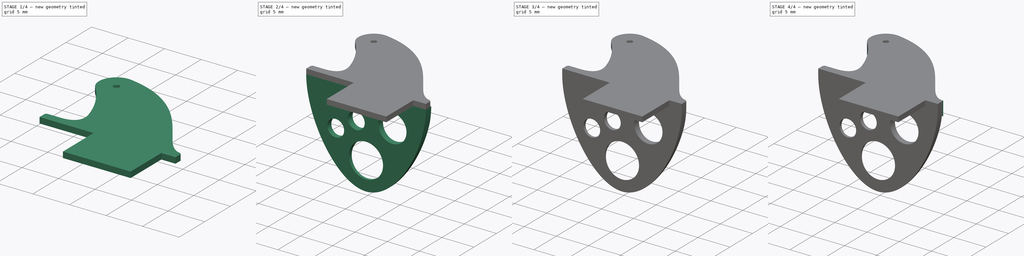
[diagram: build sequence overview — one tinted view per stage of 4, left to right]
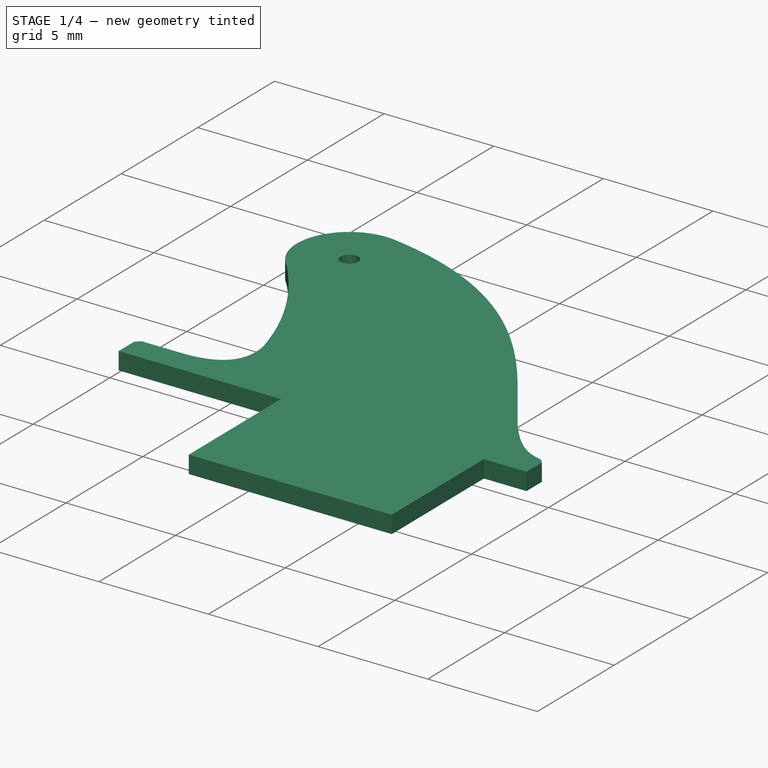
[diagram: stage 1 of 4 — iso view after this stage's code; geometry added in this stage tinted green]
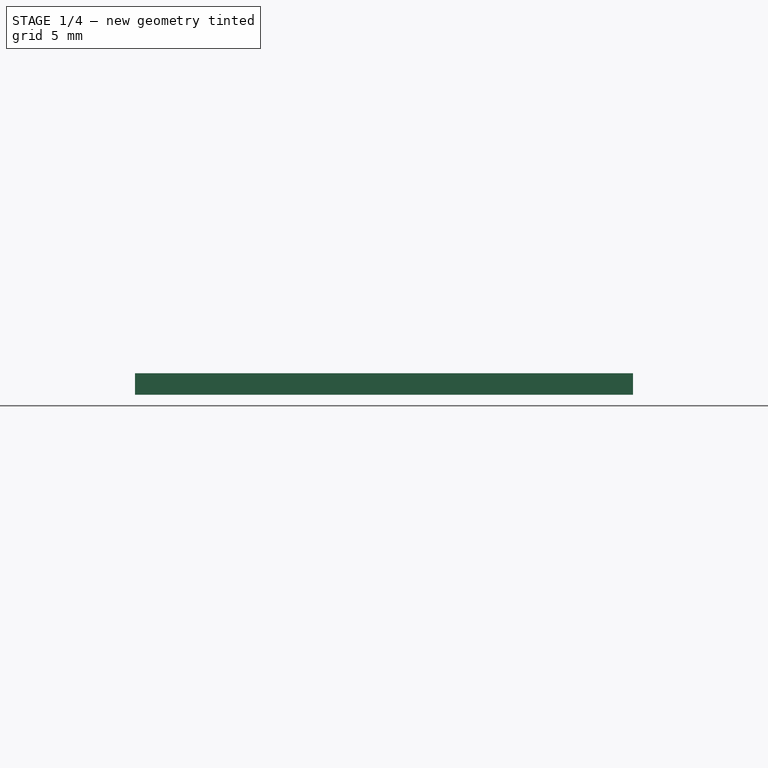
[diagram: stage 1 of 4 — front view after this stage's code; geometry added in this stage tinted green]
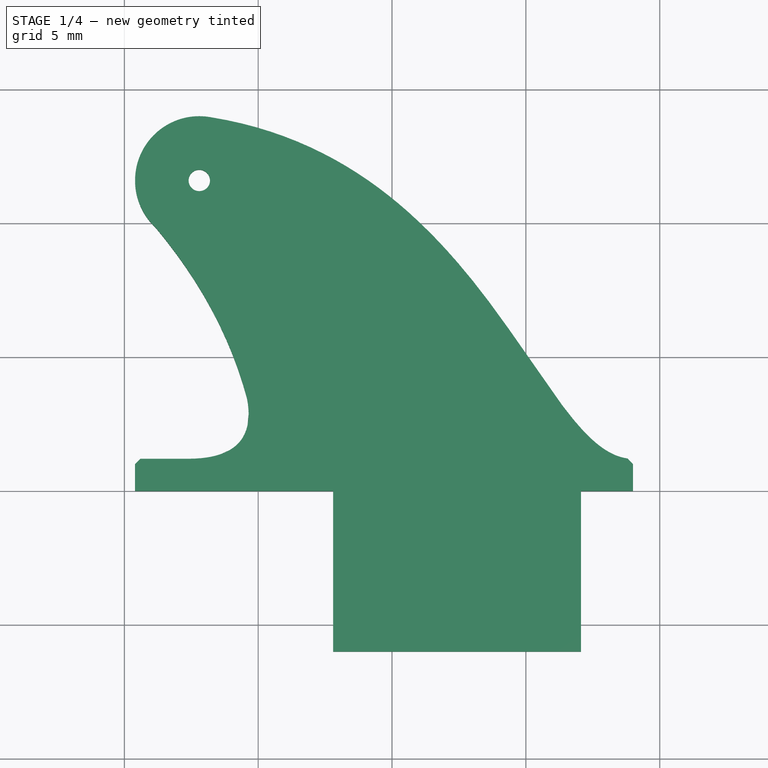
[diagram: stage 1 of 4 — top view after this stage's code; geometry added in this stage tinted green]
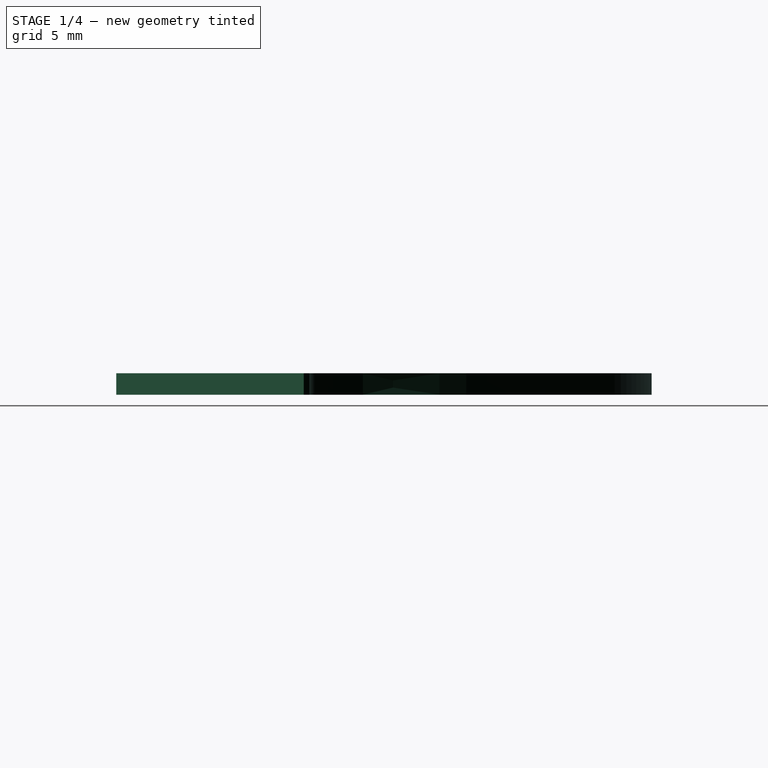
[diagram: stage 1 of 4 — right view after this stage's code; geometry added in this stage tinted green]
FCSTD DOCUMENT  (FreeCAD 0.20R0.20.2)
Label: 014
License: All rights reserved
LicenseURL: http://en.wikipedia.org/wiki/All_rights_reserved
objects: Sketcher::SketchObject×7, Part::Extrusion×5, Part::Chamfer×5, Part::Cut×2
note: 19 computed .brp shape members not serialized (recipe doc carries the construction recipe); baked Part::Feature solids carry a one-line shape summary decoded from their .brp

FEATURE [Sketcher::SketchObject] Sketch  label="main"
  FullyConstrained = true
  sketch-geometry (25):
    g0: LineSegment StartX=12.0586 StartY=-6 StartZ=0 EndX=12.0586 EndY=0 EndZ=0
    g1: LineSegment StartX=2.8 StartY=-6 StartZ=0 EndX=2.8 EndY=0 EndZ=0
    g2: LineSegment StartX=2.8 StartY=-6 StartZ=0 EndX=12.0586 EndY=-6 EndZ=0
    g3: LineSegment StartX=12.0586 StartY=0 StartZ=0 EndX=14 EndY=0 EndZ=0
    g4: LineSegment StartX=2.8 StartY=0 StartZ=0 EndX=0 EndY=0 EndZ=0
    g5: LineSegment StartX=14 StartY=0 StartZ=0 EndX=14 EndY=1.2 EndZ=0
    g6: LineSegment StartX=0 StartY=0 StartZ=0 EndX=-4.6 EndY=0 EndZ=0
    g7: Circle CenterX=-2.2 CenterY=11.6 CenterZ=0 NormalX=0 NormalY=0 NormalZ=1 AngleXU=0 Radius=0.4
    g8-g11: Circle x4 (B-spline internal-alignment scaffolding for g12; pole/knot coordinates omitted)
    g12: BSplineCurve PolesCount=4 KnotsCount=2 Degree=3 IsPeriodic=0
    g13: GeomPoint X=-1.74436 Y=13.9564 Z=0
    g14: GeomPoint X=14 Y=1.2 Z=0
    g15: ArcOfCircle CenterX=-2.2 CenterY=11.6 CenterZ=0 NormalX=0 NormalY=0 NormalZ=1 AngleXU=0 Radius=2.4 StartAngle=1.37979 EndAngle=3.95565
    g16: LineSegment StartX=-2.62672 StartY=1.2 StartZ=0 EndX=-4.6 EndY=1.2 EndZ=0
    g17: LineSegment StartX=-4.6 StartY=0 StartZ=0 EndX=-4.6 EndY=1.2 EndZ=0
    g18: Circle CenterX=-2.62672 CenterY=1.2 CenterZ=0 NormalX=0 NormalY=0 NormalZ=1 AngleXU=0 Radius=1
    g19: Circle CenterX=0 CenterY=1.2 CenterZ=0 NormalX=0 NormalY=0 NormalZ=1 AngleXU=0 Radius=1
    g20: Circle CenterX=-0.413885 CenterY=3.44541 CenterZ=0 NormalX=0 NormalY=0 NormalZ=1 AngleXU=0 Radius=1
    g21: BSplineCurve PolesCount=3 KnotsCount=2 Degree=2 IsPeriodic=0
    g22: GeomPoint X=-2.62672 Y=1.2 Z=0
    g23: GeomPoint X=-0.413885 Y=3.44541 Z=0
    g24: BSplineCurve PolesCount=3 KnotsCount=2 Degree=2 IsPeriodic=0
  constraints (52):
    c: Vertical(g0)
    c: Vertical(g1)
    c: Block(g1)
    c: Block(g0)
    c: Distance(g1) = 6
    c: Coincident(g2,g1)
    c: Horizontal(g2)
    c: Coincident(g0,g2)
    c: Block(g2)
    c: Coincident(g3,g0)
    c: Horizontal(g3)
    c: Coincident(g4,g1)
    c: Horizontal(g4)
    c: Block(g3)
    c: Block(g4)
    c: Coincident(g5,g3)
    c: Vertical(g5)
    c: Distance(g5) = 1.2
    c: Coincident(g6,g4)
    c: Horizontal(g6)
    c: Distance(g6) = 4.6
    c: Block(g7)
    c: Weight(g8) = 1
    c: Equal(g8,g9)
    c: Equal(g8,g10)
    c: Equal(g8,g11)
    c: Coincident(g12,g5)
    c: InternalAlignment(g8-g11 -> g12) x4
    c: InternalAlignment(g13,g12)
    c: InternalAlignment(g14,g12)
    c: Block(g12)
    c: Coincident(g15,g7)
    c: Coincident(g15,g12)
    c: Coincident(g15,g24)
    c: Block(g15)
    c: Horizontal(g16)
    c: Coincident(g17,g6)
    c: Vertical(g17)
    c: Coincident(g17,g16)
    c: Weight(g18) = 1
    c: Equal(g18,g19)
    c: Equal(g18,g20)
    c: InternalAlignment(g18,g21)
    c: InternalAlignment(g19,g21)
    c: InternalAlignment(g20,g21)
    c: InternalAlignment(g22,g21)
    c: InternalAlignment(g23,g21)
    c: Block(g16)
    c: Coincident(g16,g21)
    c: Coincident(g21,g24)
    c: Block(g24)
    c: Block(g21)
FEATURE [Part::Extrusion] Extrude  label="horn001"
  Base = -> Sketch
  Dir = (0,0,1)
  DirMode = 2
  FaceMakerClass = Part::FaceMakerBullseye
  LengthFwd = 0.8
  LengthRev = 0
  Solid = true
  Symmetric = false
FEATURE [Part::Chamfer] Chamfer003
  Base = -> Extrude
  Edges = 1 edges r=0.2: [Edge11]
FEATURE [Part::Chamfer] Chamfer004
  Base = -> Chamfer003
  Edges = 1 edges r=0.2: [Edge43]
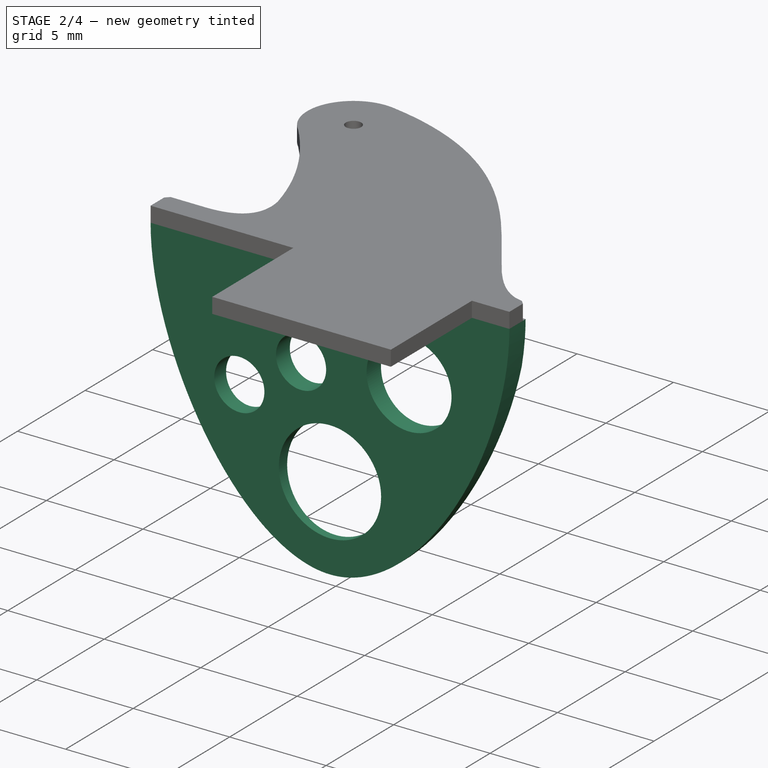
[diagram: stage 2 of 4 — iso view after this stage's code; geometry added in this stage tinted green]
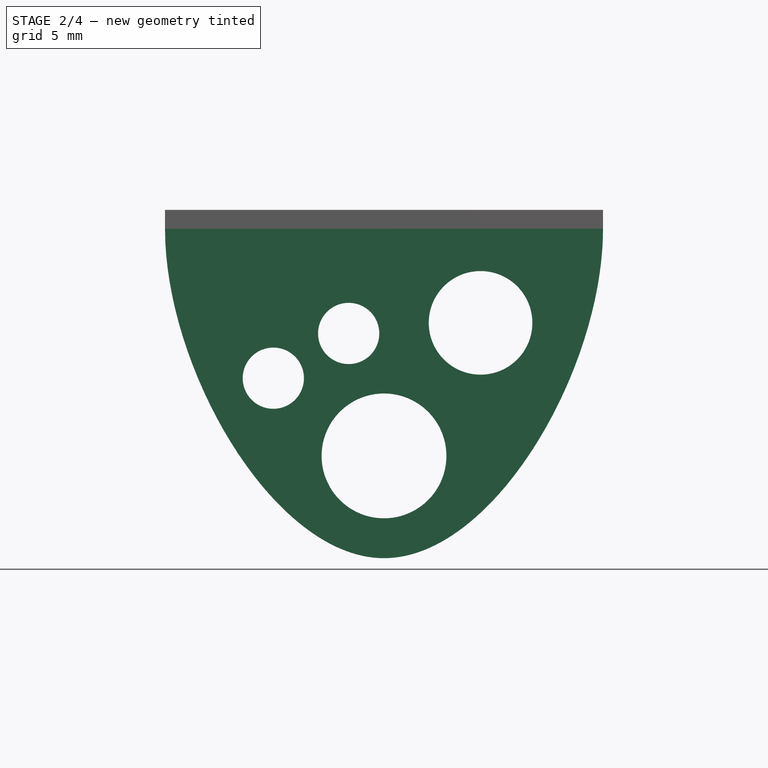
[diagram: stage 2 of 4 — front view after this stage's code; geometry added in this stage tinted green]
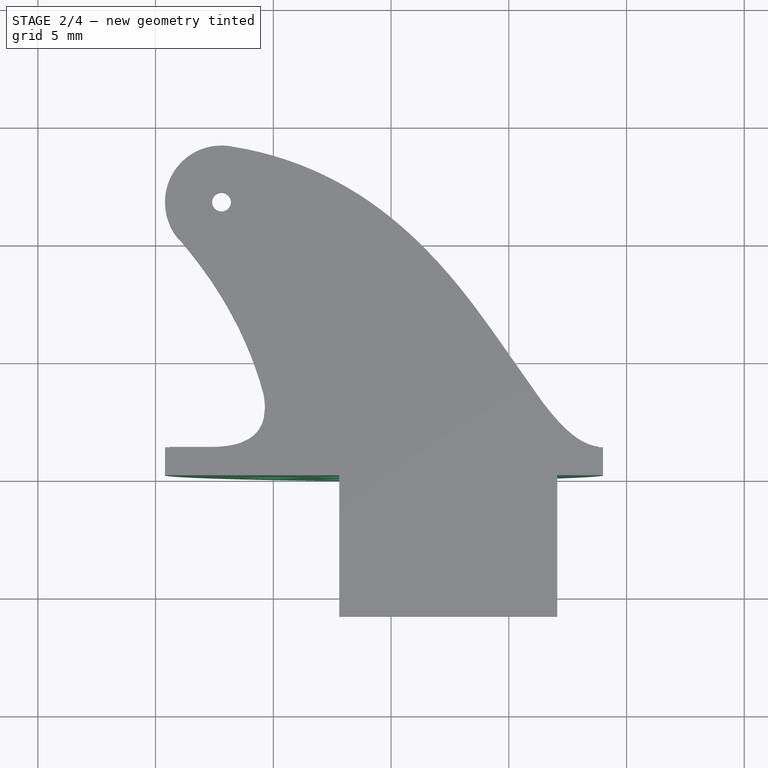
[diagram: stage 2 of 4 — top view after this stage's code; geometry added in this stage tinted green]
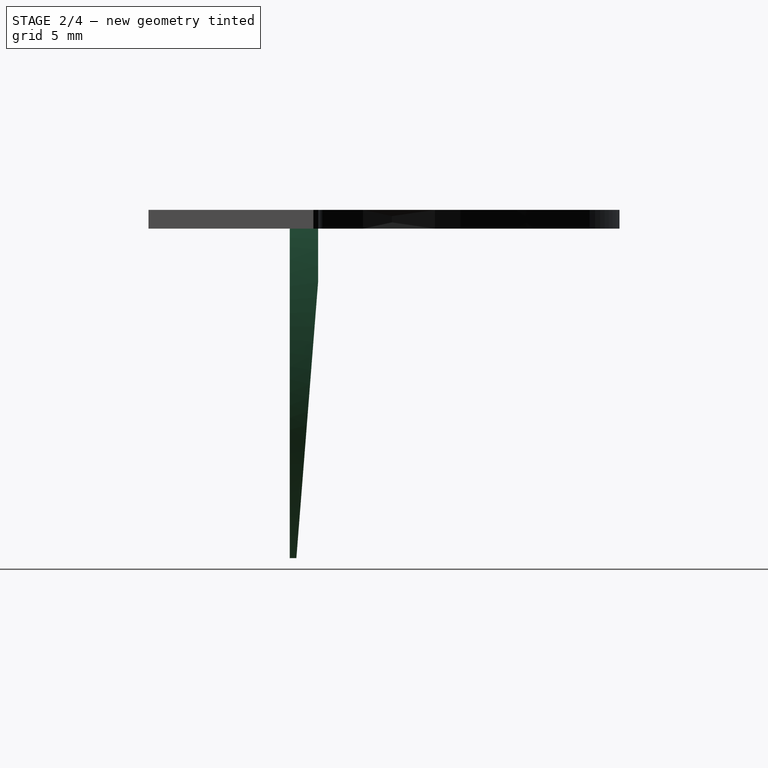
[diagram: stage 2 of 4 — right view after this stage's code; geometry added in this stage tinted green]
FEATURE [Sketcher::SketchObject] Sketch002
  FullyConstrained = true
  Placement = pos=(-4.6,0,0) rot=(1,0,0;1.5708rad)
  sketch-geometry (14):
    g0-g4: Circle x5 (B-spline internal-alignment scaffolding for g5; pole/knot coordinates omitted)
    g5: BSplineCurve PolesCount=5 KnotsCount=3 Degree=3 IsPeriodic=0
    g6: GeomPoint X=0 Y=0 Z=0
    g7: GeomPoint X=9.3 Y=-13.9926 Z=0
    g8: GeomPoint X=18.6 Y=0 Z=0
    g9: Circle CenterX=13.4 CenterY=-4 CenterZ=0 NormalX=0 NormalY=0 NormalZ=1 AngleXU=0 Radius=2.2
    g10: Circle CenterX=9.3 CenterY=-9.65 CenterZ=0 NormalX=0 NormalY=0 NormalZ=1 AngleXU=0 Radius=2.65
    g11: LineSegment StartX=0 StartY=0 StartZ=0 EndX=18.6 EndY=0 EndZ=0
    g12: Circle CenterX=4.6 CenterY=-6.35 CenterZ=0 NormalX=0 NormalY=0 NormalZ=1 AngleXU=0 Radius=1.3
    g13: Circle CenterX=7.8 CenterY=-4.45 CenterZ=0 NormalX=0 NormalY=0 NormalZ=1 AngleXU=0 Radius=1.3
  constraints (14):
    c: Weight(g0) = 1
    c: Equal(g0, g1-g4) x4
    c: InternalAlignment(g0-g4 -> g5) x5
    c: InternalAlignment(g6,g5)
    c: InternalAlignment(g7,g5)
    c: InternalAlignment(g8,g5)
    c: Block(g5)
    c: Block(g10)
    c: Coincident(g11,g5)
    c: Coincident(g11,g5)
    c: Horizontal(g11)
    c: Block(g9)
    c: Block(g13)
    c: Block(g12)
FEATURE [Sketcher::SketchObject] Sketch003
  FullyConstrained = false
  Placement = pos=(-4.6,0,0) rot=(1,0,0;1.5708rad)
  sketch-geometry (20):
    g0-g4: Circle x5 (B-spline internal-alignment scaffolding for g5; pole/knot coordinates omitted)
    g5: BSplineCurve PolesCount=5 KnotsCount=3 Degree=3 IsPeriodic=0
    g6: GeomPoint X=0 Y=0 Z=0
    g7: GeomPoint X=9.3 Y=-13.9926 Z=0
    g8: GeomPoint X=18.6 Y=0 Z=0
    g9: Circle CenterX=5.2 CenterY=-4 CenterZ=0 NormalX=0 NormalY=0 NormalZ=1 AngleXU=0 Radius=2.2
    g10: Circle CenterX=13.4 CenterY=-4 CenterZ=0 NormalX=0 NormalY=0 NormalZ=1 AngleXU=0 Radius=2.2
    g11: Circle CenterX=9.3 CenterY=-9.65 CenterZ=0 NormalX=0 NormalY=0 NormalZ=1 AngleXU=0 Radius=2.65
    g12: LineSegment StartX=0 StartY=0 StartZ=0 EndX=18.6 EndY=0 EndZ=0
    g13: Circle CenterX=4.6 CenterY=-6.35 CenterZ=0 NormalX=0 NormalY=0 NormalZ=1 AngleXU=0 Radius=1.3
    g14: Circle CenterX=7.8 CenterY=-4.45 CenterZ=0 NormalX=0 NormalY=0 NormalZ=1 AngleXU=0 Radius=1.3
    g15: LineSegment StartX=4.6 StartY=-6.35 StartZ=0 EndX=4.6 EndY=0 EndZ=0
    g16: LineSegment StartX=0 StartY=0 StartZ=0 EndX=0 EndY=-6.35 EndZ=0
    g17: LineSegment StartX=4.6 StartY=-6.35 StartZ=0 EndX=0 EndY=-6.35 EndZ=0
    g18: LineSegment StartX=4.6 StartY=-6.35 StartZ=0 EndX=7.8 EndY=-6.35 EndZ=0
    g19: LineSegment StartX=7.8 StartY=-4.45 StartZ=0 EndX=7.8 EndY=-6.35 EndZ=0
  constraints (30):
    c: Weight(g0) = 1
    c: Equal(g0, g1-g4) x4
    c: InternalAlignment(g0-g4 -> g5) x5
    c: InternalAlignment(g6,g5)
    c: InternalAlignment(g7,g5)
    c: InternalAlignment(g8,g5)
    c: Block(g5)
    c: Block(g9)
    c: Block(g11)
    c: Coincident(g12,g5)
    c: Coincident(g12,g5)
    c: Horizontal(g12)
    c: Block(g10)
    c: Coincident(g15,g13)
    c: PointOnObject(g15,g12)
    c: Vertical(g15)
    c: Distance(g15) = 6.35
    c: Coincident(g16,g5)
    c: Vertical(g16)
    c: Coincident(g17,g13)
    c: Horizontal(g17)
    c: Coincident(g17,g16)
    c: Distance(g17) = 4.6
    c: Coincident(g18,g13)
    c: Horizontal(g18)
    c: Coincident(g19,g14)
    c: Vertical(g19)
    c: Coincident(g18,g19)
    c: Distance(g18) = 3.2
    c: Distance(g19) = 1.9
FEATURE [Part::Extrusion] Extrude002  label="base"
  Base = -> Sketch002
  Dir = (0,-1,2e-16)
  DirMode = 2
  FaceMakerClass = Part::FaceMakerBullseye
  LengthFwd = 1.2
  LengthRev = 0
  Placement = pos=(0,1.2,0) rot=(0,0,1;0rad)
  Solid = true
  Symmetric = false
FEATURE [Sketcher::SketchObject] Sketch006  label="remove003"
  FullyConstrained = true
  Placement = pos=(0,0,0) rot=(0.57735,0.57735,0.57735;2.0944rad)
  sketch-geometry (3):
    g0: LineSegment StartX=1.2 StartY=1.519 StartZ=0 EndX=14.2 EndY=1.519 EndZ=0
    g1: LineSegment StartX=14.2 StartY=1.519 StartZ=0 EndX=14.2 EndY=2.519 EndZ=0
    g2: LineSegment StartX=14.2 StartY=2.519 StartZ=0 EndX=1.2 EndY=1.519 EndZ=0
  constraints (7):
    c: Horizontal(g0)
    c: Block(g0)
    c: Coincident(g1,g0)
    c: Vertical(g1)
    c: Distance(g1) = 1
    c: Coincident(g2,g1)
    c: Coincident(g2,g0)
FEATURE [Part::Extrusion] Extrude004  label="remove004"
  Base = -> Sketch006
  Dir = (1,0,0)
  DirMode = 2
  FaceMakerClass = Part::FaceMakerBullseye
  LengthFwd = 24
  LengthRev = 0
  Placement = pos=(-6,-0.16,-0.2) rot=(1,0,0;-1.64934rad)
  Solid = true
  Symmetric = false
FEATURE [Part::Cut] Cut001  label="base001"
  Base = -> Extrude002
  Tool = -> Extrude004
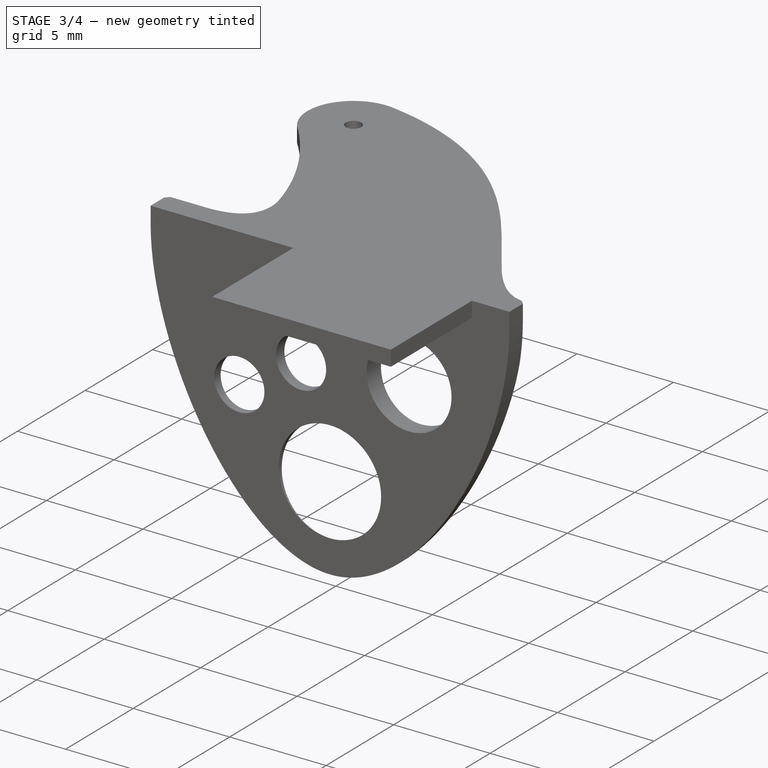
[diagram: stage 3 of 4 — iso view after this stage's code; geometry added in this stage tinted green]
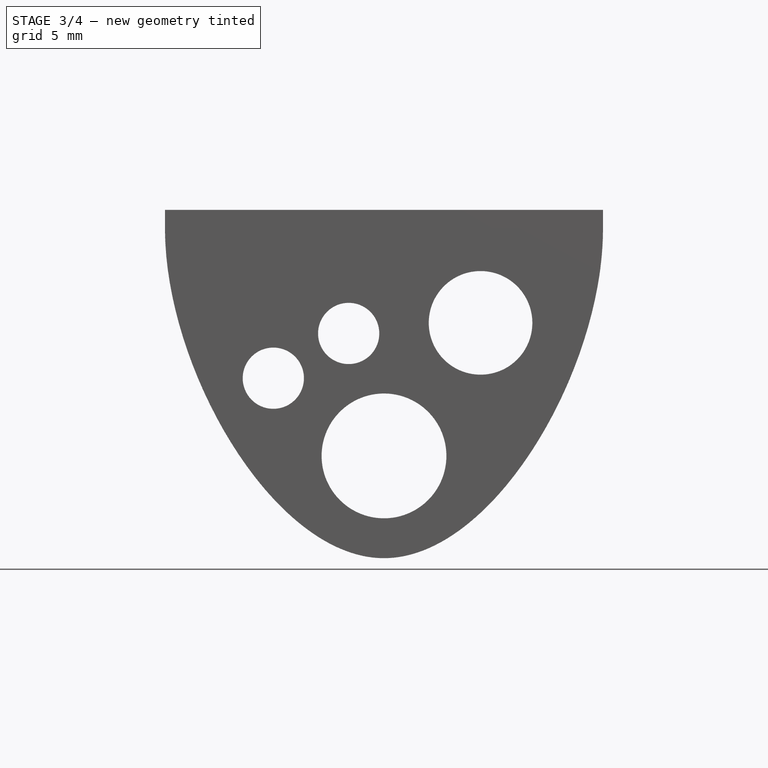
[diagram: stage 3 of 4 — front view after this stage's code; geometry added in this stage tinted green]
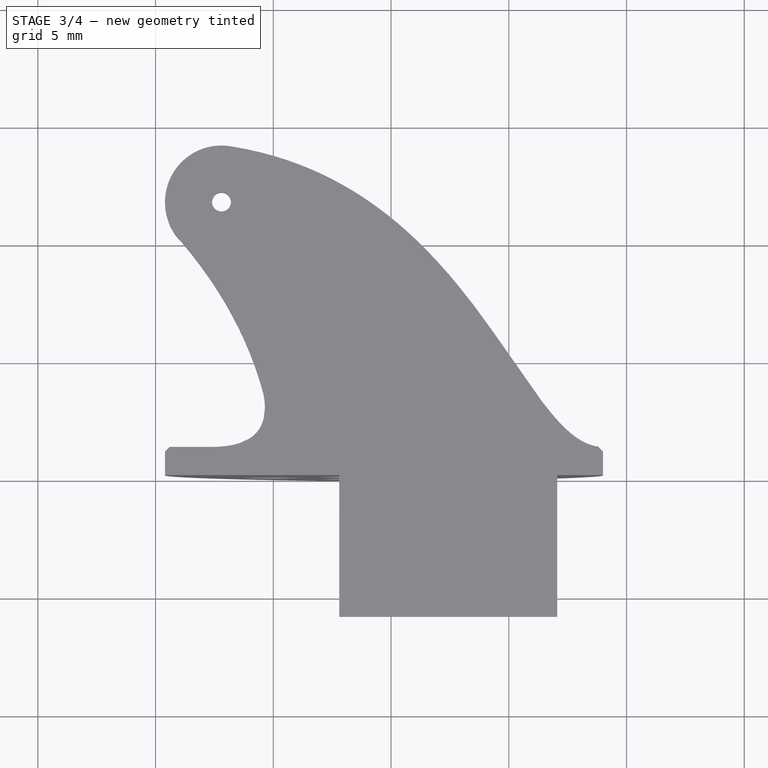
[diagram: stage 3 of 4 — top view after this stage's code; geometry added in this stage tinted green]
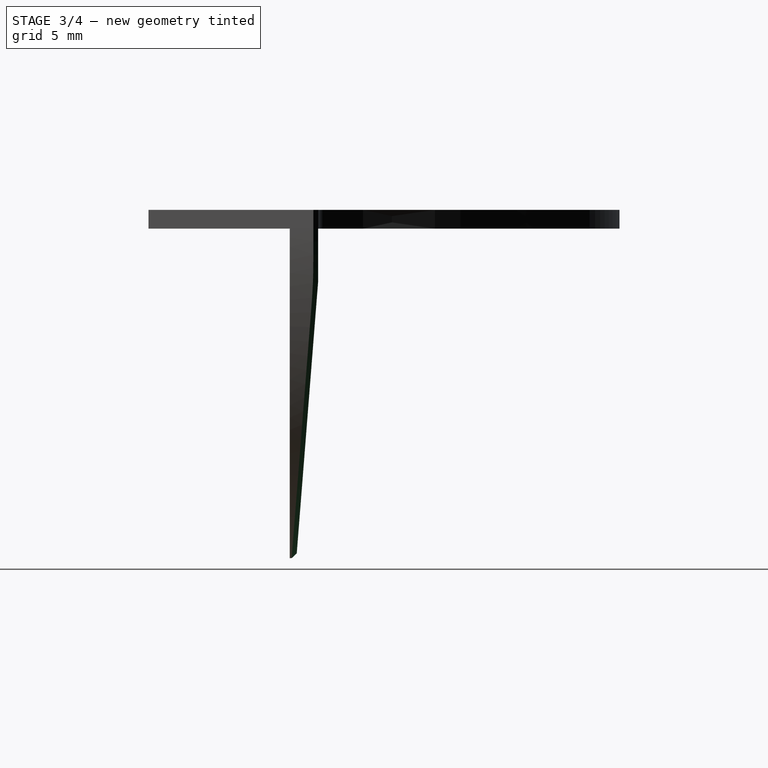
[diagram: stage 3 of 4 — right view after this stage's code; geometry added in this stage tinted green]
FEATURE [Part::Chamfer] Chamfer
  Base = -> Cut001
  Edges = 1 edges r=0.4: [Edge13]
FEATURE [Part::Chamfer] Chamfer001
  Base = -> Chamfer
  Edges = 2 edges r=0.4: [Edge7,Edge8]
FEATURE [Part::Chamfer] Chamfer002
  Base = -> Chamfer001
  Edges = 1 edges r=0.2: [Edge4]
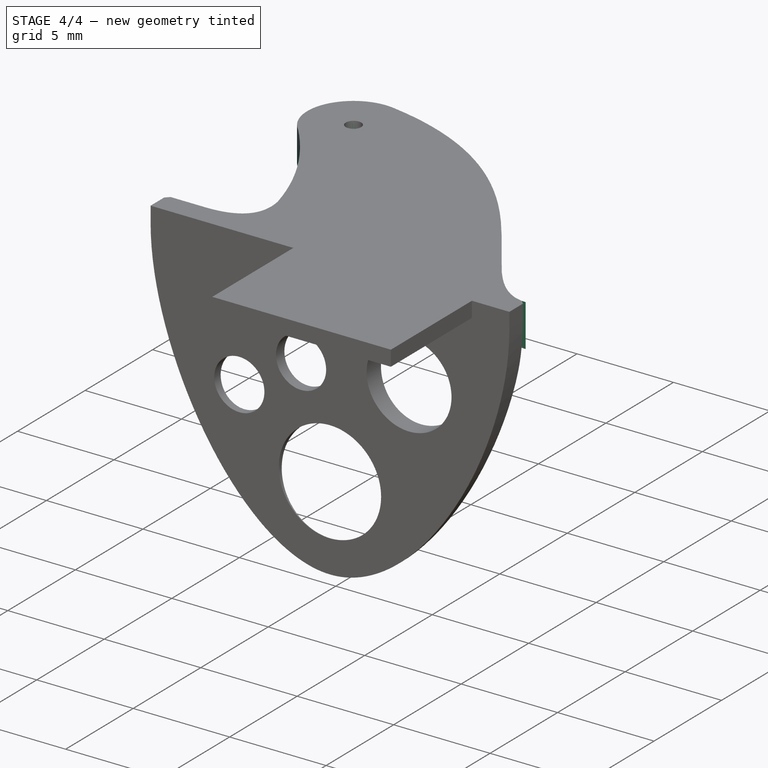
[diagram: stage 4 of 4 — iso view after this stage's code; geometry added in this stage tinted green]
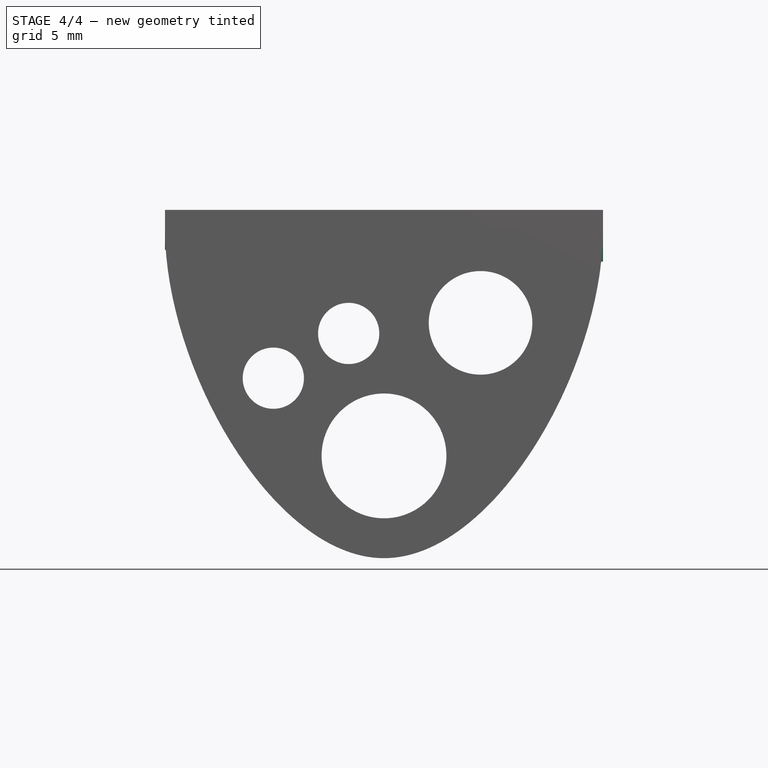
[diagram: stage 4 of 4 — front view after this stage's code; geometry added in this stage tinted green]
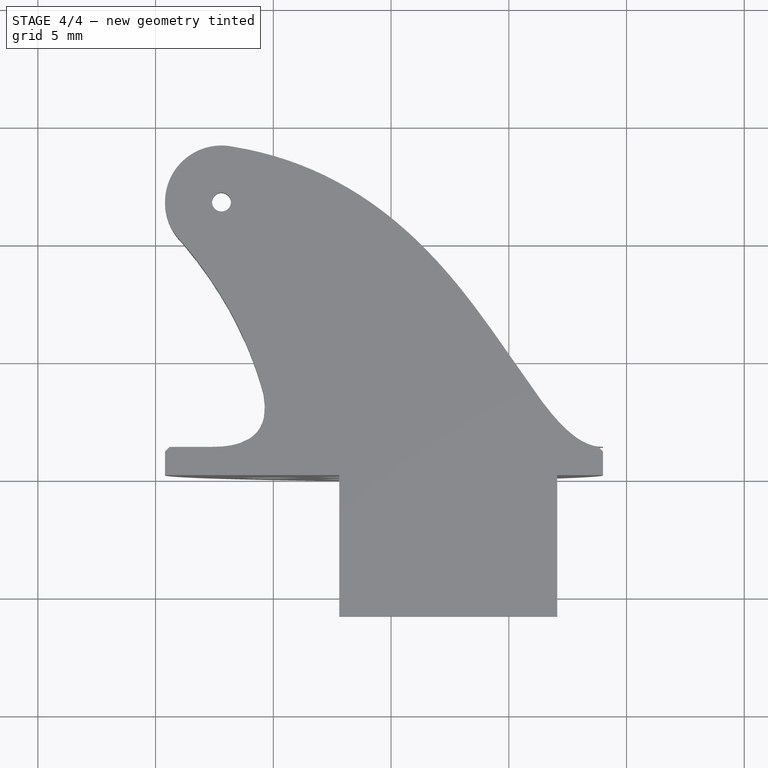
[diagram: stage 4 of 4 — top view after this stage's code; geometry added in this stage tinted green]
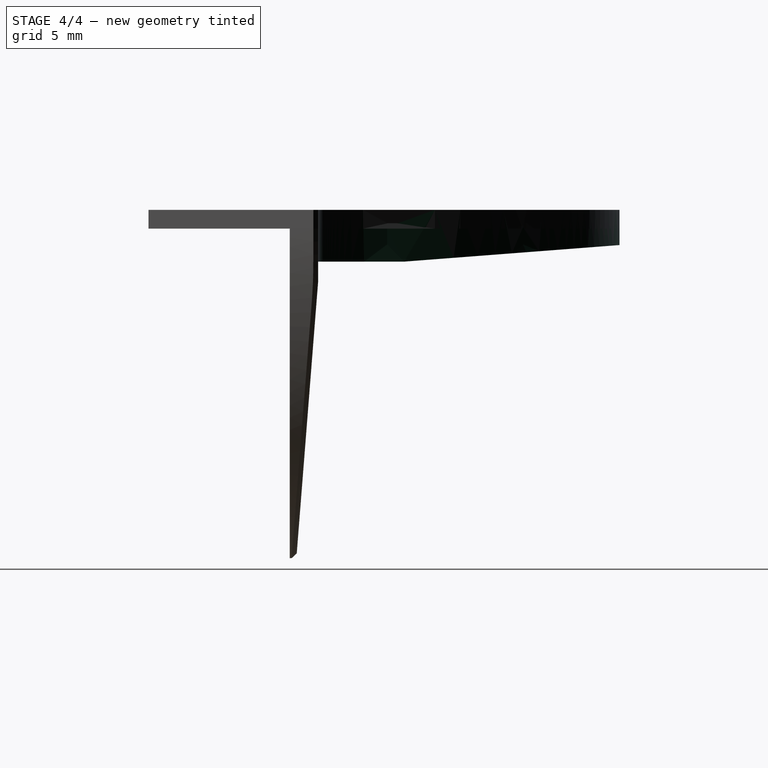
[diagram: stage 4 of 4 — right view after this stage's code; geometry added in this stage tinted green]
FEATURE [Sketcher::SketchObject] Sketch001  label="main001"
  FullyConstrained = false
  sketch-geometry (45):
    g0: Circle CenterX=-2.2 CenterY=11.6 CenterZ=0 NormalX=0 NormalY=0 NormalZ=1 AngleXU=0 Radius=0.4
    g1-g4: Circle x4 (B-spline internal-alignment scaffolding for g5; pole/knot coordinates omitted)
    g5: BSplineCurve PolesCount=4 KnotsCount=2 Degree=3 IsPeriodic=0
    g6: GeomPoint X=-1.74436 Y=13.9564 Z=0
    g7: GeomPoint X=14 Y=1.2 Z=0
    g8: ArcOfCircle CenterX=-2.2 CenterY=11.6 CenterZ=0 NormalX=0 NormalY=0 NormalZ=1 AngleXU=0 Radius=2.4 StartAngle=1.37979 EndAngle=3.95565
    g9: Circle CenterX=-2.62672 CenterY=1.2 CenterZ=0 NormalX=0 NormalY=0 NormalZ=1 AngleXU=0 Radius=1
    g10: Circle CenterX=0 CenterY=1.2 CenterZ=0 NormalX=0 NormalY=0 NormalZ=1 AngleXU=0 Radius=1
    g11: Circle CenterX=-0.413885 CenterY=3.44541 CenterZ=0 NormalX=0 NormalY=0 NormalZ=1 AngleXU=0 Radius=1
    g12: BSplineCurve PolesCount=3 KnotsCount=2 Degree=2 IsPeriodic=0
    g13: GeomPoint X=-2.62672 Y=1.2 Z=0
    g14: GeomPoint X=-0.413885 Y=3.44541 Z=0
    g15: BSplineCurve PolesCount=3 KnotsCount=2 Degree=2 IsPeriodic=0
    g16: Circle CenterX=1.34801 CenterY=2.51783 CenterZ=0 NormalX=0 NormalY=0 NormalZ=1 AngleXU=0 Radius=1
    g17: Circle CenterX=1.8831 CenterY=1.2 CenterZ=0 NormalX=0 NormalY=0 NormalZ=1 AngleXU=0 Radius=1
    g18: Circle CenterX=3.28198 CenterY=1.2 CenterZ=0 NormalX=0 NormalY=0 NormalZ=1 AngleXU=0 Radius=1
    g19: BSplineCurve PolesCount=3 KnotsCount=2 Degree=2 IsPeriodic=0
    g20: GeomPoint X=1.34801 Y=2.51783 Z=0
    g21: GeomPoint X=3.28198 Y=1.2 Z=0
    g22: Circle CenterX=9.22372 CenterY=2.86164 CenterZ=0 NormalX=0 NormalY=0 NormalZ=1 AngleXU=0 Radius=1
    g23: Circle CenterX=9.64409 CenterY=1.39848 CenterZ=0 NormalX=0 NormalY=0 NormalZ=1 AngleXU=0 Radius=1
    g24: Circle CenterX=7.76214 CenterY=1.2 CenterZ=0 NormalX=0 NormalY=0 NormalZ=1 AngleXU=0 Radius=1
    g25: BSplineCurve PolesCount=3 KnotsCount=2 Degree=2 IsPeriodic=0
    g26: GeomPoint X=9.22372 Y=2.86164 Z=0
    g27: GeomPoint X=7.76214 Y=1.2 Z=0
    g28: LineSegment StartX=-2.62672 StartY=1.2 StartZ=0 EndX=3.28198 EndY=1.2 EndZ=0
    g29: LineSegment StartX=7.76214 StartY=1.2 StartZ=0 EndX=14 EndY=1.2 EndZ=0
    g30: Circle CenterX=-0.671756 CenterY=12.1251 CenterZ=0 NormalX=0 NormalY=0 NormalZ=1 AngleXU=0 Radius=1
    g31: Circle CenterX=-0.754831 CenterY=12.699 CenterZ=0 NormalX=0 NormalY=0 NormalZ=1 AngleXU=0 Radius=1
    g32: Circle CenterX=0.224587 CenterY=12.4971 CenterZ=0 NormalX=0 NormalY=0 NormalZ=1 AngleXU=0 Radius=1
    g33: BSplineCurve PolesCount=3 KnotsCount=2 Degree=2 IsPeriodic=0
    g34: GeomPoint X=-0.671756 Y=12.1251 Z=0
    g35: GeomPoint X=0.224587 Y=12.4971 Z=0
    g36: Circle CenterX=-2.10085 CenterY=9.02995 CenterZ=0 NormalX=0 NormalY=0 NormalZ=1 AngleXU=0 Radius=1
    g37: Circle CenterX=-2.68572 CenterY=9.84108 CenterZ=0 NormalX=0 NormalY=0 NormalZ=1 AngleXU=0 Radius=1
    g38: Circle CenterX=-1.96262 CenterY=10.0016 CenterZ=0 NormalX=0 NormalY=0 NormalZ=1 AngleXU=0 Radius=1
    g39: BSplineCurve PolesCount=3 KnotsCount=2 Degree=2 IsPeriodic=0
    g40: GeomPoint X=-2.10085 Y=9.02995 Z=0
    g41: GeomPoint X=-1.96262 Y=10.0016 Z=0
    g42: ArcOfCircle CenterX=-2.2 CenterY=11.6 CenterZ=0 NormalX=0 NormalY=0 NormalZ=1 AngleXU=0 Radius=1.61593 StartAngle=4.85982 EndAngle=6.61413
    g43: BSplineCurve PolesCount=3 KnotsCount=2 Degree=2 IsPeriodic=0
    g44: BSplineCurve PolesCount=3 KnotsCount=2 Degree=2 IsPeriodic=0
  constraints (76):
    c: Block(g0)
    c: Weight(g1) = 1
    c: Equal(g1,g2)
    c: Equal(g1,g3)
    c: Equal(g1,g4)
    c: InternalAlignment(g1-g4 -> g5) x4
    c: InternalAlignment(g6,g5)
    c: InternalAlignment(g7,g5)
    c: Block(g5)
    c: Coincident(g8,g0)
    c: Coincident(g8,g5)
    c: Coincident(g8,g15)
    c: Block(g8)
    c: Weight(g9) = 1
    c: Equal(g9,g11)
    c: InternalAlignment(g9,g12)
    c: InternalAlignment(g10,g12)
    c: InternalAlignment(g11,g12)
    c: InternalAlignment(g13,g12)
    c: InternalAlignment(g14,g12)
    c: Coincident(g12,g15)
    c: Block(g15)
    c: Block(g12)
    c: Weight(g16) = 1
    c: Equal(g16,g17)
    c: Equal(g16,g18)
    c: InternalAlignment(g16,g19)
    c: InternalAlignment(g17,g19)
    c: InternalAlignment(g18,g19)
    c: InternalAlignment(g20,g19)
    c: InternalAlignment(g21,g19)
    c: Block(g19)
    c: Weight(g22) = 1
    c: Coincident(g25,g43)
    c: Equal(g22,g23)
    c: Equal(g22,g24)
    c: InternalAlignment(g22,g25)
    c: InternalAlignment(g23,g25)
    c: InternalAlignment(g24,g25)
    c: InternalAlignment(g26,g25)
    c: InternalAlignment(g27,g25)
    c: Block(g25)
    c: Coincident(g28,g19)
    c: Horizontal(g28)
    c: Coincident(g29,g25)
    c: Horizontal(g29)
    c: Weight(g30) = 1
    c: Equal(g30,g31)
    c: Equal(g30,g32)
    c: InternalAlignment(g30,g33)
    c: InternalAlignment(g31,g33)
    c: InternalAlignment(g32,g33)
    c: InternalAlignment(g34,g33)
    c: InternalAlignment(g35,g33)
    c: Weight(g36) = 1
    c: Equal(g36,g37)
    c: Equal(g36,g38)
    c: InternalAlignment(g36,g39)
    c: InternalAlignment(g37,g39)
    c: InternalAlignment(g38,g39)
    c: InternalAlignment(g40,g39)
    c: InternalAlignment(g41,g39)
    c: Coincident(g42,g0)
    c: Coincident(g42,g39)
    c: Coincident(g42,g33)
    c: Block(g42)
    c: PointOnObject(g43,g31)
    c: PointOnObject(g44,g37)
    c: Coincident(g33,g43)
    c: Coincident(g39,g44)
    c: Block(g43)
    c: Block(g44)
    c: Block(g39)
    c: Block(g33)
    c: Block(g29)
    c: Block(g28)
FEATURE [Part::Extrusion] Extrude001  label="remove002"
  Base = -> Sketch001
  Dir = (0,0,1)
  DirMode = 2
  FaceMakerClass = Part::FaceMakerBullseye
  LengthFwd = 2.2
  LengthRev = 0
  Placement = pos=(0,0,-1.4) rot=(0,0,1;0rad)
  Solid = true
  Symmetric = false
FEATURE [Sketcher::SketchObject] Sketch004  label="remove"
  FullyConstrained = true
  Placement = pos=(0,0,0) rot=(0.57735,0.57735,0.57735;2.0944rad)
  sketch-geometry (3):
    g0: LineSegment StartX=1.2 StartY=1.519 StartZ=0 EndX=14.2 EndY=1.519 EndZ=0
    g1: LineSegment StartX=14.2 StartY=1.519 StartZ=0 EndX=14.2 EndY=2.519 EndZ=0
    g2: LineSegment StartX=14.2 StartY=2.519 StartZ=0 EndX=1.2 EndY=1.519 EndZ=0
  constraints (7):
    c: Horizontal(g0)
    c: Block(g0)
    c: Coincident(g1,g0)
    c: Vertical(g1)
    c: Distance(g1) = 1
    c: Coincident(g2,g1)
    c: Coincident(g2,g0)
FEATURE [Sketcher::SketchObject] Sketch005  label="remove001"
  FullyConstrained = true
  Placement = pos=(0,0,0) rot=(0.57735,0.57735,0.57735;2.0944rad)
  sketch-geometry (8):
    g0: LineSegment StartX=0 StartY=0 StartZ=0 EndX=0 EndY=1.519 EndZ=0
    g1: LineSegment StartX=0 StartY=1.519 StartZ=0 EndX=1.2 EndY=1.519 EndZ=0
    g2: LineSegment StartX=1.2 StartY=1.519 StartZ=0 EndX=1.2 EndY=4.71901 EndZ=0
    g3: LineSegment StartX=1.2 StartY=4.71901 StartZ=0 EndX=14.2 EndY=4.71901 EndZ=0
    g4: LineSegment StartX=1.2 StartY=1.519 StartZ=0 EndX=14.2 EndY=1.519 EndZ=0
    g5: LineSegment StartX=14.2 StartY=4.71901 StartZ=0 EndX=14.2 EndY=4.319 EndZ=0
    g6: LineSegment StartX=1.2 StartY=1.519 StartZ=0 EndX=14.2 EndY=4.319 EndZ=0
    g7: LineSegment StartX=14.2 StartY=4.319 StartZ=0 EndX=14.2 EndY=1.519 EndZ=0
  constraints (22):
    c: Coincident(g0,g-1)
    c: Vertical(g0)
    c: Coincident(g1,g0)
    c: Horizontal(g1)
    c: Distance(g1) = 1.2
    c: Coincident(g2,g1)
    c: Vertical(g2)
    c: Distance(g2) = 3.2
    c: Coincident(g3,g2)
    c: Horizontal(g3)
    c: Distance(g3) = 13
    c: Coincident(g4,g1)
    c: Horizontal(g4)
    c: Coincident(g5,g3)
    c: Vertical(g5)
    c: Distance(g5) = 0.4
    c: Coincident(g6,g1)
    c: Coincident(g6,g5)
    c: Coincident(g7,g5)
    c: Coincident(g7,g4)
    c: Vertical(g7)
    c: Block(g7)
FEATURE [Part::Extrusion] Extrude003
  Base = -> Sketch004
  Dir = (1,0,0)
  DirMode = 2
  FaceMakerClass = Part::FaceMakerBullseye
  LengthFwd = 24
  LengthRev = 0
  Placement = pos=(-6,0,-3.2) rot=(0,0,1;0rad)
  Solid = true
  Symmetric = false
FEATURE [Part::Cut] Cut  label="horn"
  Base = -> Extrude001
  Tool = -> Extrude003
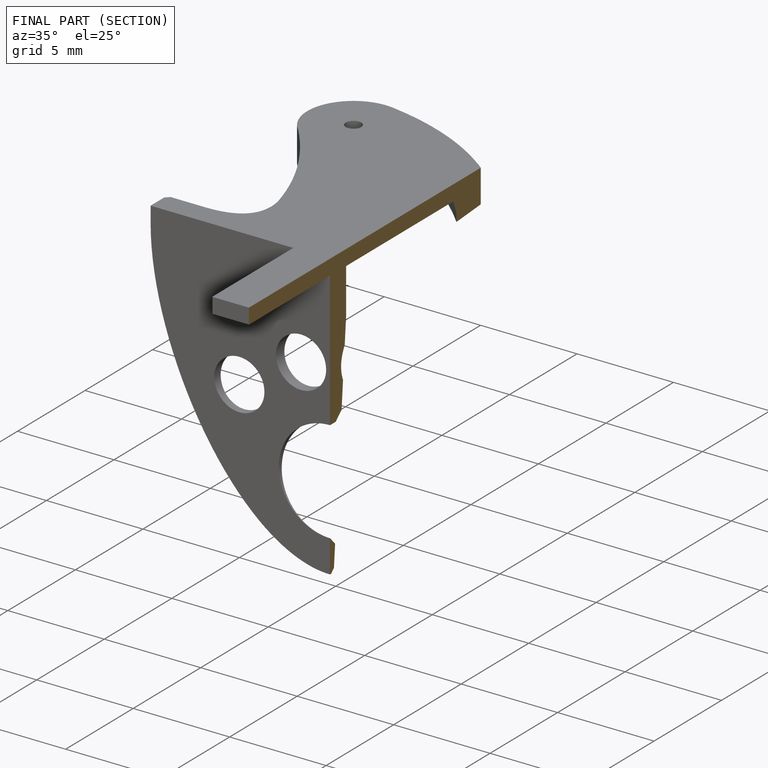
[diagram: finished part — half-section view (interior)]
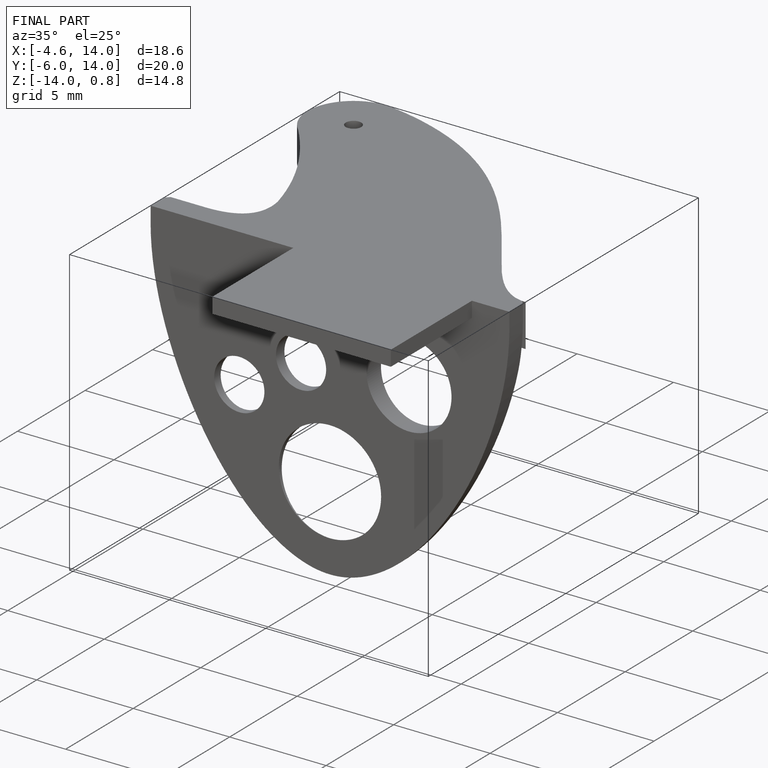
[diagram: finished part — iso view with bounding-box wireframe]
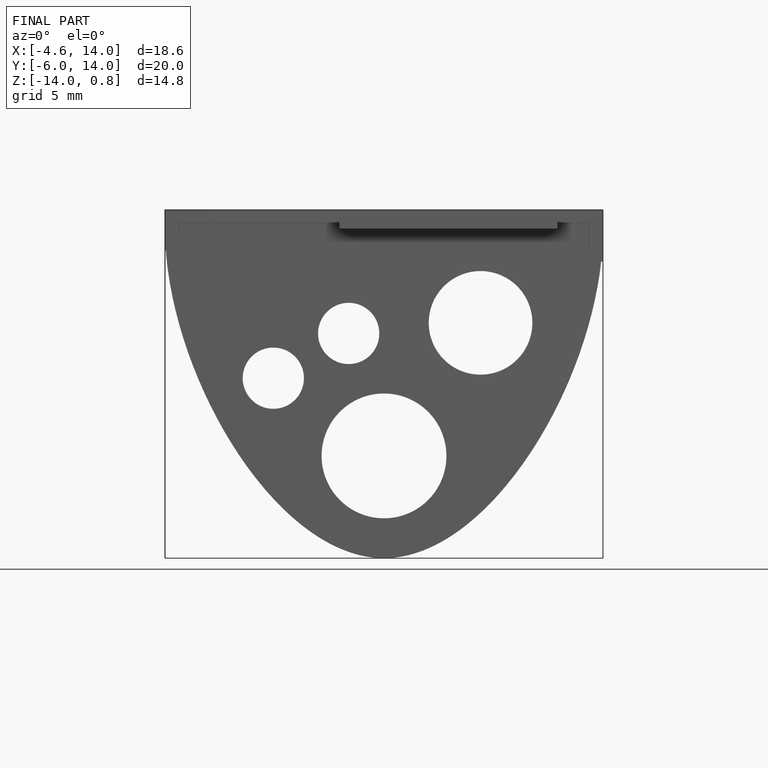
[diagram: finished part — front view with bounding-box wireframe]
